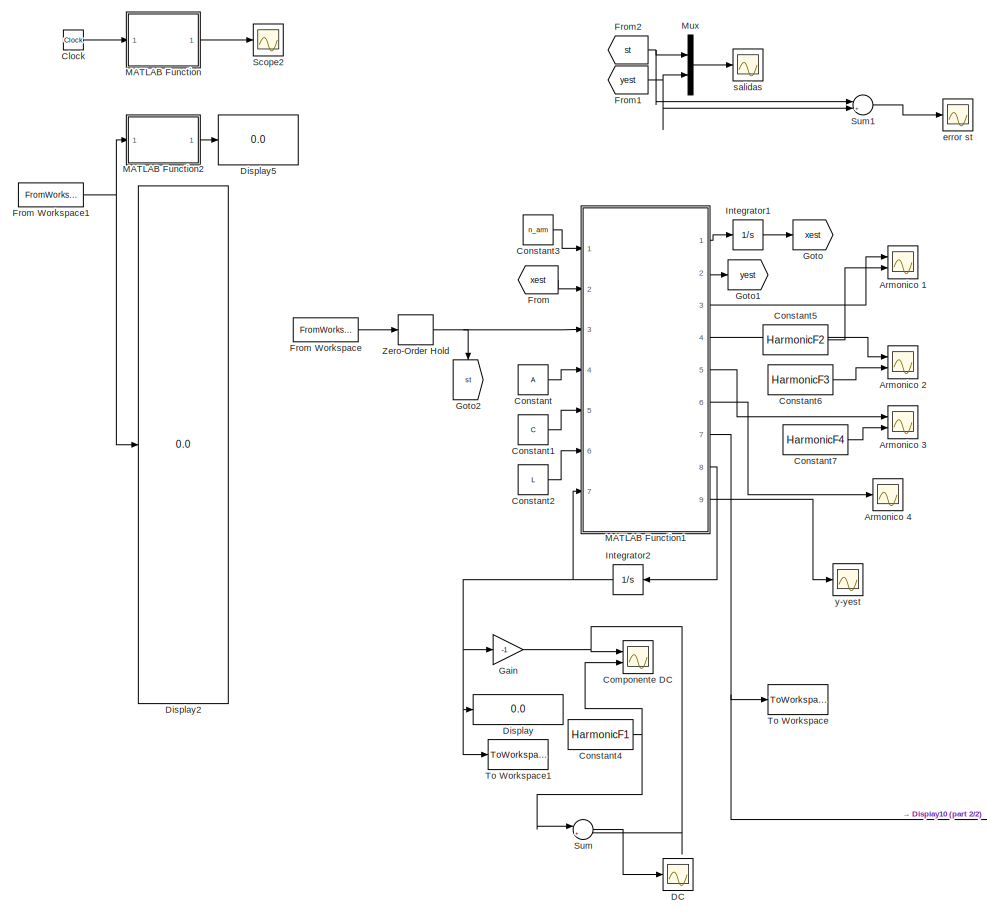
[diagram: root canvas - part 1/2, top center region]
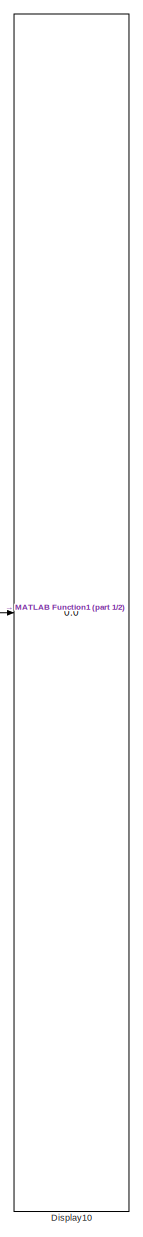
[diagram: root canvas - part 2/2, right side, full height]
MODEL slx_a1185fab0a26
KIND model
CONFIG AbsTol = auto
CONFIG EnableMultiTasking = off
CONFIG FixedStep = auto
CONFIG MaxStep = stepsize
CONFIG MinStep = auto
CONFIG RelTol = 1e-3
CONFIG SampleTimeConstraint = Unconstrained
CONFIG Solver = VariableStepAuto
CONFIG SolverName = VariableStepAuto
CONFIG StartTime = 0.0
CONFIG StopTime = tsim
BLOCK [Scope] Armonico 1
  NumInputPorts = 2
  Ports = [2]
  ScopeSpecificationString = Simulink.scopes.TimeScopeBlockCfg('CurrentConfiguration', extmgr.ConfigurationSet(extmgr.Configuration('Core','General UI',true,'FigureColor',[1 1 1]),extmgr.Configuration('Core','Source UI',true),extmgr.Configuration('Sources','WiredSimulink',true,'DataLoggingVariableName','ScopeData1'),extmgr.Configuration('Visuals','Time Domain',true,'SerializedDisplays',{struct('MinYLimReal','-0.0725','MaxYLim...<+1699ch>
BLOCK [Scope] Armonico 2 
  NumInputPorts = 2
  Ports = [2]
  ScopeSpecificationString = Simulink.scopes.TimeScopeBlockCfg('CurrentConfiguration', extmgr.ConfigurationSet(extmgr.Configuration('Core','General UI',true,'FigureColor',[1 1 1]),extmgr.Configuration('Core','Source UI',true),extmgr.Configuration('Sources','WiredSimulink',true,'DataLoggingVariableName','ScopeData1'),extmgr.Configuration('Visuals','Time Domain',true,'SerializedDisplays',{struct('MinYLimReal','-0.04614','MaxYLi...<+1786ch>
BLOCK [Scope] Armonico 3
  NumInputPorts = 2
  Ports = [2]
  ScopeSpecificationString = Simulink.scopes.TimeScopeBlockCfg('CurrentConfiguration', extmgr.ConfigurationSet(extmgr.Configuration('Core','General UI',true,'FigureColor',[1 1 1]),extmgr.Configuration('Core','Source UI',true),extmgr.Configuration('Sources','WiredSimulink',true,'DataLoggingVariableName','ScopeData1'),extmgr.Configuration('Visuals','Time Domain',true,'SerializedDisplays',{struct('MinYLimReal','-0.06117','MaxYLi...<+1782ch>
BLOCK [Scope] Armonico 4
  NumInputPorts = 1
  Ports = [1]
  ScopeSpecificationString = Simulink.scopes.TimeScopeBlockCfg('CurrentConfiguration', extmgr.ConfigurationSet(extmgr.Configuration('Core','General UI',true),extmgr.Configuration('Core','Source UI',true),extmgr.Configuration('Sources','WiredSimulink',true,'DataLoggingVariableName','ScopeData2'),extmgr.Configuration('Visuals','Time Domain',true,'SerializedDisplays',{struct('MinYLimReal','-0.059','MaxYLimReal','0.531','YLabelRe...<+1871ch>
BLOCK [Clock] Clock
  Commented = on
  Decimation = 1
BLOCK [Scope] Componente DC 
  NumInputPorts = 2
  Ports = [2]
  ScopeSpecificationString = Simulink.scopes.TimeScopeBlockCfg('CurrentConfiguration', extmgr.ConfigurationSet(extmgr.Configuration('Core','General UI',true,'FigureColor',[1 1 1]),extmgr.Configuration('Core','Source UI',true),extmgr.Configuration('Sources','WiredSimulink',true,'DataLoggingVariableName','ScopeData1'),extmgr.Configuration('Visuals','Time Domain',true,'SerializedDisplays',{struct('MinYLimReal','-0.23114','MaxYLi...<+1717ch>
BLOCK [Constant] Constant
  Value = A
BLOCK [Constant] Constant1
  Value = C
BLOCK [Constant] Constant2
  Value = L
BLOCK [Constant] Constant3
  Value = n_arm
BLOCK [Constant] Constant4
  Value = HarmonicF1
BLOCK [Constant] Constant5
  Value = HarmonicF2
BLOCK [Constant] Constant6
  Value = HarmonicF3
BLOCK [Constant] Constant7
  Value = HarmonicF4
BLOCK [Scope] DC
  NumInputPorts = 1
  Ports = [1]
  ScopeSpecificationString = Simulink.scopes.TimeScopeBlockCfg('CurrentConfiguration', extmgr.ConfigurationSet(extmgr.Configuration('Core','General UI',true,'FigureColor',[1 1 1]),extmgr.Configuration('Core','Source UI',true),extmgr.Configuration('Sources','WiredSimulink',true,'DataLoggingVariableName','ScopeData1'),extmgr.Configuration('Visuals','Time Domain',true,'SerializedDisplays',{struct('MinYLimReal','-0.16214','MaxYLi...<+1698ch>
BLOCK [Display] Display
  Decimation = 1
  Ports = [1]
BLOCK [Display] Display10
  Decimation = 1
  Ports = [1]
BLOCK [Display] Display2
  Commented = on
  Decimation = 1
  Ports = [1]
BLOCK [Display] Display5
  Commented = on
  Decimation = 1
  Ports = [1]
BLOCK [From] From
  GotoTag = xest
BLOCK [FromWorkspace] From Workspace
  SampleTime = 0
  VariableName = data
  ZeroCross = on
BLOCK [FromWorkspace] From Workspace1
  Commented = on
  SampleTime = 0
  VariableName = ecg
  ZeroCross = on
BLOCK [From] From1
  GotoTag = yest
BLOCK [From] From2
  GotoTag = st
BLOCK [Gain] Gain
  Gain = -1
  OutDataTypeStr = Inherit: Inherit via internal rule
  ParamDataTypeStr = Inherit: Inherit via internal rule
  SaturateOnIntegerOverflow = off
BLOCK [Goto] Goto
  GotoTag = xest
BLOCK [Goto] Goto1
  GotoTag = yest
BLOCK [Goto] Goto2
  GotoTag = st
BLOCK [Integrator] Integrator1
  InitialCondition = x0
  Ports = [1, 1]
BLOCK [Integrator] Integrator2
  Ports = [1, 1]
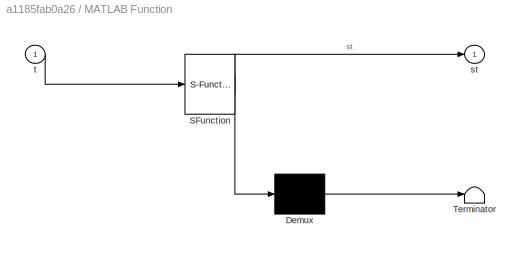
BLOCK [SubSystem] MATLAB Function
  Commented = on
  ErrorFcn = Stateflow.Translate.translate
  PermitHierarchicalResolution = ExplicitOnly
  Ports = [1, 1]
  RequestExecContextInheritance = off
  SFBlockType = MATLAB Function
  TreatAsAtomicUnit = on
  Variant = off
BLOCK [Demux] MATLAB Function/ Demux 
  Outputs = 1
  Ports = [1, 1]
BLOCK [S-Function] MATLAB Function/ SFunction 
  EnableBusSupport = on
  FunctionName = sf_sfun
  PortCounts = [1 2]
  Ports = [1, 2]
  SFcnIsStateOwnerBlock = off
  SFunctionDeploymentMode = off
  Tag = Stateflow S-Function armonicosv2 2
BLOCK [Terminator] MATLAB Function/ Terminator 
BLOCK [Outport] MATLAB Function/st
  IconDisplay = Port number
BLOCK [Inport] MATLAB Function/t
  IconDisplay = Port number
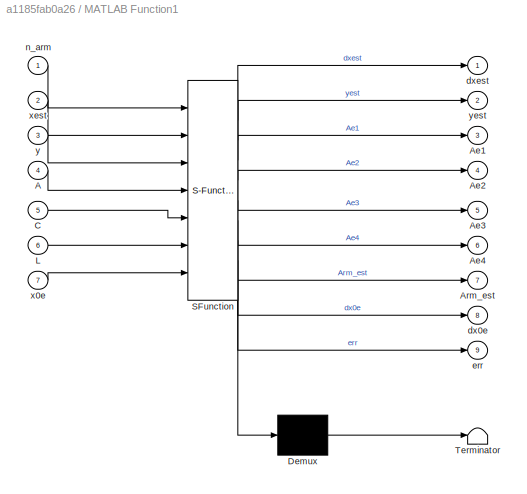
BLOCK [SubSystem] MATLAB Function1
  ErrorFcn = Stateflow.Translate.translate
  PermitHierarchicalResolution = ExplicitOnly
  Ports = [7, 9]
  RequestExecContextInheritance = off
  SFBlockType = MATLAB Function
  TreatAsAtomicUnit = on
  Variant = off
BLOCK [Demux] MATLAB Function1/ Demux 
  Outputs = 1
  Ports = [1, 1]
BLOCK [S-Function] MATLAB Function1/ SFunction 
  EnableBusSupport = on
  FunctionName = sf_sfun
  PortCounts = [7 10]
  Ports = [7, 10]
  SFcnIsStateOwnerBlock = off
  SFunctionDeploymentMode = off
  Tag = Stateflow S-Function armonicosv2 1
BLOCK [Terminator] MATLAB Function1/ Terminator 
BLOCK [Inport] MATLAB Function1/A
  IconDisplay = Port number
  Port = 4
BLOCK [Outport] MATLAB Function1/Ae1
  IconDisplay = Port number
  Port = 3
BLOCK [Outport] MATLAB Function1/Ae2
  IconDisplay = Port number
  Port = 4
BLOCK [Outport] MATLAB Function1/Ae3
  IconDisplay = Port number
  Port = 5
BLOCK [Outport] MATLAB Function1/Ae4
  IconDisplay = Port number
  Port = 6
BLOCK [Outport] MATLAB Function1/Arm_est
  IconDisplay = Port number
  Port = 7
BLOCK [Inport] MATLAB Function1/C
  IconDisplay = Port number
  Port = 5
BLOCK [Inport] MATLAB Function1/L
  IconDisplay = Port number
  Port = 6
BLOCK [Outport] MATLAB Function1/dx0e
  IconDisplay = Port number
  Port = 8
BLOCK [Outport] MATLAB Function1/dxest
  IconDisplay = Port number
BLOCK [Outport] MATLAB Function1/err
  IconDisplay = Port number
  Port = 9
BLOCK [Inport] MATLAB Function1/n_arm
  IconDisplay = Port number
BLOCK [Inport] MATLAB Function1/x0e
  IconDisplay = Port number
  Port = 7
BLOCK [Inport] MATLAB Function1/xest
  IconDisplay = Port number
  Port = 2
BLOCK [Inport] MATLAB Function1/y
  IconDisplay = Port number
  Port = 3
BLOCK [Outport] MATLAB Function1/yest
  IconDisplay = Port number
  Port = 2
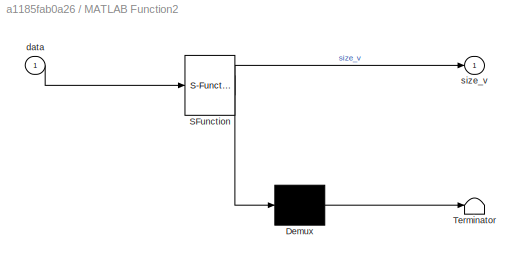
BLOCK [SubSystem] MATLAB Function2
  Commented = on
  ErrorFcn = Stateflow.Translate.translate
  PermitHierarchicalResolution = ExplicitOnly
  Ports = [1, 1]
  RequestExecContextInheritance = off
  SFBlockType = MATLAB Function
  TreatAsAtomicUnit = on
  Variant = off
BLOCK [Demux] MATLAB Function2/ Demux 
  Outputs = 1
  Ports = [1, 1]
BLOCK [S-Function] MATLAB Function2/ SFunction 
  EnableBusSupport = on
  FunctionName = sf_sfun
  PortCounts = [1 2]
  Ports = [1, 2]
  SFcnIsStateOwnerBlock = off
  SFunctionDeploymentMode = off
  Tag = Stateflow S-Function armonicosv2 3
BLOCK [Terminator] MATLAB Function2/ Terminator 
BLOCK [Inport] MATLAB Function2/data
  IconDisplay = Port number
BLOCK [Outport] MATLAB Function2/size_v
  IconDisplay = Port number
BLOCK [Mux] Mux
  DisplayOption = bar
  Inputs = 2
  Ports = [2, 1]
BLOCK [Scope] Scope2
  Commented = on
  NumInputPorts = 1
  Ports = [1]
  ScopeSpecificationString = Simulink.scopes.TimeScopeBlockCfg('CurrentConfiguration', extmgr.ConfigurationSet(extmgr.Configuration('Core','General UI',true),extmgr.Configuration('Core','Source UI',true),extmgr.Configuration('Sources','WiredSimulink',true,'DataLoggingVariableName','ScopeData1'),extmgr.Configuration('Visuals','Time Domain',true,'SerializedDisplays',{struct('MinYLimReal','-2.32421','MaxYLimReal','2.32421','YLab...<+1403ch>
BLOCK [Sum] Sum
  IconShape = round
  InputSameDT = off
  Inputs = |+-
  OutDataTypeStr = Inherit: Inherit via internal rule
  Ports = [2, 1]
  SaturateOnIntegerOverflow = off
BLOCK [Sum] Sum1
  IconShape = round
  InputSameDT = off
  Inputs = |+-
  OutDataTypeStr = Inherit: Inherit via internal rule
  Ports = [2, 1]
  SaturateOnIntegerOverflow = off
BLOCK [ToWorkspace] To Workspace
  FixptAsFi = on
  MaxDataPoints = inf
  Ports = [1]
  SampleTime = -1
  Save2DSignal = 2-D array (concatenate along first dimension)
  VariableName = Arm_e
BLOCK [ToWorkspace] To Workspace1
  FixptAsFi = on
  MaxDataPoints = inf
  Ports = [1]
  SampleTime = -1
  Save2DSignal = 2-D array (concatenate along first dimension)
  VariableName = Arm_e_DC
BLOCK [ZeroOrderHold] Zero-Order Hold
  SampleTime = 1/Fs
BLOCK [Scope] error st
  NumInputPorts = 1
  Ports = [1]
  ScopeSpecificationString = Simulink.scopes.TimeScopeBlockCfg('CurrentConfiguration', extmgr.ConfigurationSet(extmgr.Configuration('Core','General UI',true,'FigureColor',[1 1 1]),extmgr.Configuration('Core','Source UI',true),extmgr.Configuration('Sources','WiredSimulink',true,'DataLoggingVariableName','ScopeData1'),extmgr.Configuration('Visuals','Time Domain',true,'SerializedDisplays',{struct('MinYLimReal','-1.99019','MaxYLi...<+1699ch>
BLOCK [Scope] salidas
  NumInputPorts = 1
  Ports = [1]
  ScopeSpecificationString = Simulink.scopes.TimeScopeBlockCfg('CurrentConfiguration', extmgr.ConfigurationSet(extmgr.Configuration('Core','General UI',true,'FigureColor',[1 1 1]),extmgr.Configuration('Core','Source UI',true),extmgr.Configuration('Sources','WiredSimulink',true),extmgr.Configuration('Visuals','Time Domain',true,'SerializedDisplays',{struct('MinYLimReal','-4.30973','MaxYLimReal','7.81801','YLabelReal','','MinYL...<+1741ch>
BLOCK [Scope] y-yest
  NumInputPorts = 1
  Ports = [1]
  ScopeSpecificationString = Simulink.scopes.TimeScopeBlockCfg('CurrentConfiguration', extmgr.ConfigurationSet(extmgr.Configuration('Core','General UI',true,'FigureColor',[1 1 1]),extmgr.Configuration('Core','Source UI',true),extmgr.Configuration('Sources','WiredSimulink',true,'DataLoggingVariableName','ScopeData2'),extmgr.Configuration('Visuals','Time Domain',true,'SerializedDisplays',{struct('MinYLimReal','-1.99019','MaxYLi...<+1692ch>
LINE Clock:1 -> MATLAB Function:1
LINE Constant1:1 -> MATLAB Function1:5
LINE Constant2:1 -> MATLAB Function1:6
LINE Constant3:1 -> MATLAB Function1:1
NET Constant4:1 -> Componente DC :2, Sum:1
LINE Constant5:1 -> Armonico 1:2
LINE Constant6:1 -> Armonico 2 :2
LINE Constant7:1 -> Armonico 3:2
LINE Constant:1 -> MATLAB Function1:4
NET From Workspace1:1 -> Display2:1, MATLAB Function2:1
LINE From Workspace:1 -> Zero-Order Hold:1
NET From1:1 -> Mux:2, Sum1:2
NET From2:1 -> Mux:1, Sum1:1
LINE From:1 -> MATLAB Function1:2
NET Gain:1 -> Componente DC :1, Sum:2
LINE Integrator1:1 -> Goto:1
NET Integrator2:1 -> Display:1, Gain:1, MATLAB Function1:7, To Workspace1:1
LINE MATLAB Function1:1 -> Integrator1:1
LINE MATLAB Function1:2 -> Goto1:1
LINE MATLAB Function1:3 -> Armonico 1:1
LINE MATLAB Function1:4 -> Armonico 2 :1
LINE MATLAB Function1:5 -> Armonico 3:1
LINE MATLAB Function1:6 -> Armonico 4:1
NET MATLAB Function1:7 -> Display10:1, To Workspace:1
LINE MATLAB Function1:8 -> Integrator2:1
LINE MATLAB Function1:9 -> y-yest:1
LINE MATLAB Function2:1 -> Display5:1
LINE MATLAB Function:1 -> Scope2:1
LINE Mux:1 -> salidas:1
LINE Sum1:1 -> error st:1
LINE Sum:1 -> DC:1
NET Zero-Order Hold:1 -> Goto2:1, MATLAB Function1:3
note: NET lines group one-source signal fan-out (src -> all destinations, sorted); 1:1 wires keep LINE
CHART MATLAB Function1 states=1 transitions=1
  STATE_LABEL 'eML_blk_kernel()'
  STATE_LABEL "SCRIPT:\nfunction [dxest,yest,Ae1,Ae2,Ae3,Ae4,Arm_est,dx0e,err] = fcn(n_arm,xest,y,A,C,L,x0e)\n\nyest=C'*xest+x0e;\n\n dx0e=38*(y-yest);\n%38\n dxest=A*xest+L*(y-yest);\n  Arm=zeros(1,n_arm);\nerr= y-yest;\nfor i = 1:n_arm\n    j = 2*i - 1;\n    Arm(i) = sqrt((C(j)^2 + C(j+1)^2)*(xest(j)^2 + xest(j+1)^2));\nend\nAe1= Arm(1);\nAe2= Arm(2);\nAe3= Arm(3);\nAe4= Arm(4);\nAe5= Arm(5);\nAe6= Arm(6);\nAe7= Arm(7);\nAe8= Arm(...<+3608ch>"
CHART MATLAB Function states=1 transitions=1
  STATE_LABEL 'eML_blk_kernel()'
  STATE_LABEL 'SCRIPT:\nfunction st  = fcn(t)\n\nw=0.9;\nA1 = 0.5;\nA2 = 0.1;\nA3 = 0.9;\nA4 = 0.2;\nA5 = 0.05;\nA6 = 0.3;\nA7 = 0.7;\nA8 = 0.95;\ntheta1 = 0;\ntheta2 = 0;\n%st = A1*sin(w*t + theta1) + A2*sin(2*w*t + theta2) + A3*sin(3*w*t) + A4*sin(4*w*t)+...\n   %  A5*sin(5*w*t) + A6*sin(6*w*t)+ A7*sin(7*w*t) + A8*sin(8*w*t);\n\n %st = A1*sin(w*t + theta1) + A2*sin(2*w*t + theta2) + A3*sin(3*w*t)+ A4*sin(4*w*t);\n st = 1.2*sin(...<+91ch>'
CHART MATLAB Function2 states=1 transitions=1
  STATE_LABEL 'eML_blk_kernel()'
  STATE_LABEL 'SCRIPT:\nfunction size_v = a(data)\n    size_v = size(data);\nend'
